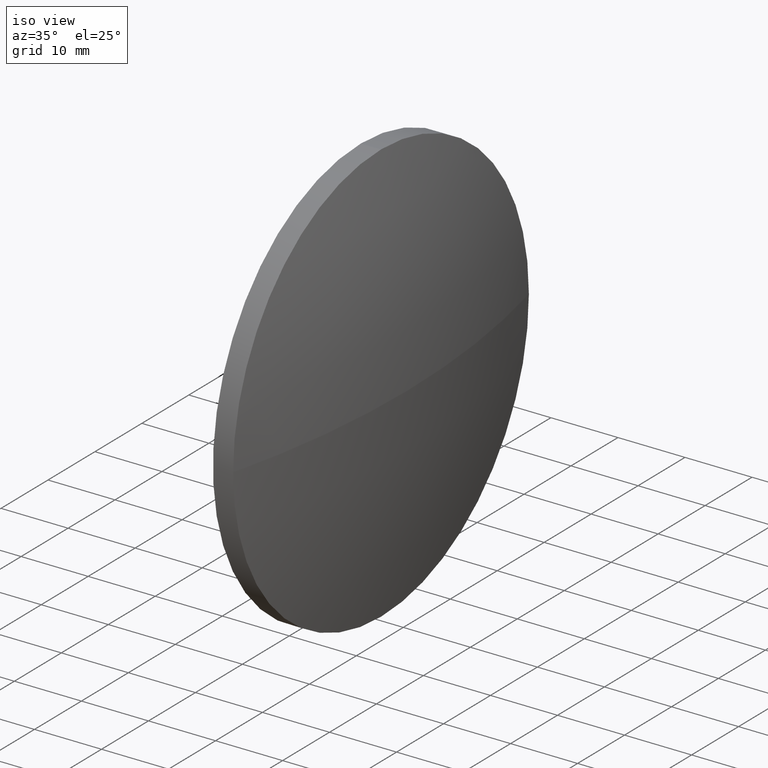
[diagram: clean part render]
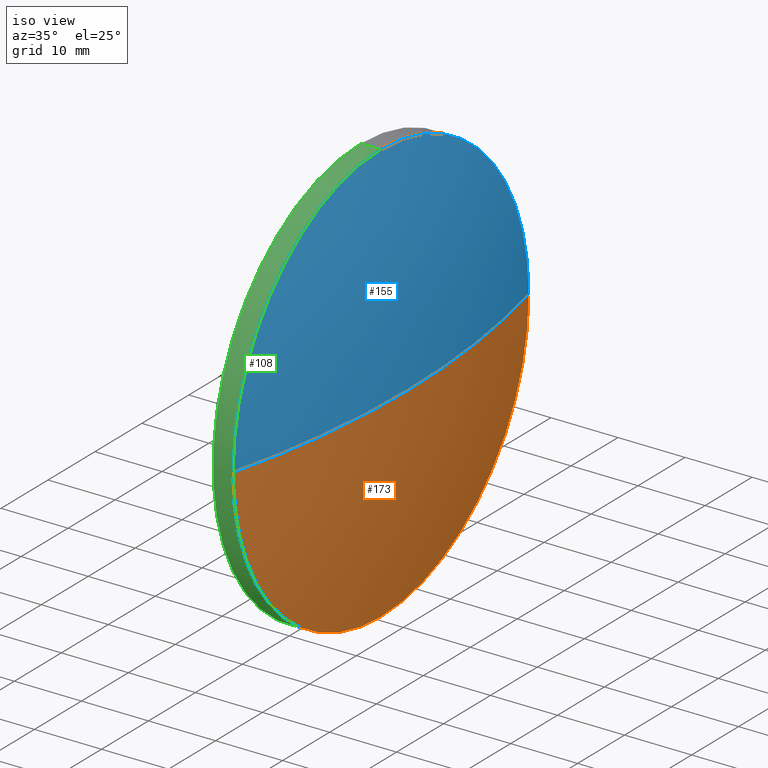
[diagram: same view with three faces highlighted in distinct colors, each labeled with its STEP entity id]
A machine part, iso view with three faces highlighted in distinct colors.
Their STEP definitions:

[orange] entity #173 — the highlighted spherical surface has radius 129.161 mm.
#3 = VERTEX_POINT ( 'NONE', #52 ) ;
#6 = ORIENTED_EDGE ( 'NONE', *, *, #19, .F. ) ;
#14 = CARTESIAN_POINT ( 'NONE',  ( 262.4010085669045800, 48.58872453449594500, 0.0000000000000000000 ) ) ;
#19 = EDGE_CURVE ( 'NONE', #33, #3, #97, .T. ) ;
#22 = CARTESIAN_POINT ( 'NONE',  ( 391.5625470284427400, 48.58872453449595200, 0.0000000000000000000 ) ) ;
#33 = VERTEX_POINT ( 'NONE', #163 ) ;
#36 = ORIENTED_EDGE ( 'NONE', *, *, #67, .F. ) ;
#37 = SPHERICAL_SURFACE ( 'NONE', #94, 129.1615384615381900 ) ;
#38 = CARTESIAN_POINT ( 'NONE',  ( 387.6625470284427600, 17.08872453449603100, -3.857637417314152400E-015 ) ) ;
#42 = DIRECTION ( 'NONE',  ( 0.0000000000000000000, 0.0000000000000000000, 1.000000000000000000 ) ) ;
#48 = EDGE_LOOP ( 'NONE', ( #36, #58, #105, #6 ) ) ;
#52 = CARTESIAN_POINT ( 'NONE',  ( 387.6625470284427600, 48.58872453449601600, -31.50000000000000700 ) ) ;
#54 = DIRECTION ( 'NONE',  ( 0.0000000000000000000, 1.000000000000000000, 1.224646799147353200E-016 ) ) ;
#58 = ORIENTED_EDGE ( 'NONE', *, *, #62, .T. ) ;
#62 = EDGE_CURVE ( 'NONE', #70, #79, #76, .T. ) ;
#64 = AXIS2_PLACEMENT_3D ( 'NONE', #98, #144, #123 ) ;
#67 = EDGE_CURVE ( 'NONE', #70, #33, #161, .T. ) ;
#70 = VERTEX_POINT ( 'NONE', #22 ) ;
#76 = CIRCLE ( 'NONE', #171, 129.1615384615381900 ) ;
#79 = VERTEX_POINT ( 'NONE', #38 ) ;
#80 = AXIS2_PLACEMENT_3D ( 'NONE', #175, #99, #182 ) ;
#94 = AXIS2_PLACEMENT_3D ( 'NONE', #14, #167, #178 ) ;
#97 = CIRCLE ( 'NONE', #64, 31.50000000000000700 ) ;
#98 = CARTESIAN_POINT ( 'NONE',  ( 387.6625470284427600, 48.58872453449600900, 0.0000000000000000000 ) ) ;
#99 = DIRECTION ( 'NONE',  ( -0.0000000000000000000, 0.0000000000000000000, 1.000000000000000000 ) ) ;
#105 = ORIENTED_EDGE ( 'NONE', *, *, #134, .F. ) ;
#111 = DIRECTION ( 'NONE',  ( 0.0000000000000000000, 1.224646799147353200E-016, -1.000000000000000000 ) ) ;
#116 = AXIS2_PLACEMENT_3D ( 'NONE', #118, #164, #42 ) ;
#118 = CARTESIAN_POINT ( 'NONE',  ( 387.6625470284427600, 48.58872453449600900, 0.0000000000000000000 ) ) ;
#123 = DIRECTION ( 'NONE',  ( 0.0000000000000000000, 0.0000000000000000000, 1.000000000000000000 ) ) ;
#134 = EDGE_CURVE ( 'NONE', #3, #79, #185, .T. ) ;
#144 = DIRECTION ( 'NONE',  ( -1.000000000000000000, -0.0000000000000000000, -0.0000000000000000000 ) ) ;
#146 = CARTESIAN_POINT ( 'NONE',  ( 262.4010085669045800, 48.58872453449594500, 0.0000000000000000000 ) ) ;
#160 = FACE_OUTER_BOUND ( 'NONE', #48, .T. ) ;
#161 = CIRCLE ( 'NONE', #80, 129.1615384615381600 ) ;
#163 = CARTESIAN_POINT ( 'NONE',  ( 387.6625470284427600, 80.08872453449592400, 0.0000000000000000000 ) ) ;
#164 = DIRECTION ( 'NONE',  ( -1.000000000000000000, -0.0000000000000000000, -0.0000000000000000000 ) ) ;
#167 = DIRECTION ( 'NONE',  ( -0.0000000000000000000, 0.0000000000000000000, -1.000000000000000000 ) ) ;
#171 = AXIS2_PLACEMENT_3D ( 'NONE', #146, #111, #54 ) ;
#173 = ADVANCED_FACE ( 'NONE', ( #160 ), #37, .T. ) ;
#175 = CARTESIAN_POINT ( 'NONE',  ( 262.4010085669045800, 48.58872453449594500, 0.0000000000000000000 ) ) ;
#178 = DIRECTION ( 'NONE',  ( 0.0000000000000000000, 1.000000000000000000, 0.0000000000000000000 ) ) ;
#182 = DIRECTION ( 'NONE',  ( 1.000000000000000000, 0.0000000000000000000, 0.0000000000000000000 ) ) ;
#185 = CIRCLE ( 'NONE', #116, 31.50000000000000700 ) ;

[blue] entity #155 — the highlighted spherical surface has radius 129.161 mm.
#5 = CARTESIAN_POINT ( 'NONE',  ( 262.4010085669045800, 48.58872453449594500, 0.0000000000000000000 ) ) ;
#9 = ORIENTED_EDGE ( 'NONE', *, *, #67, .T. ) ;
#10 = DIRECTION ( 'NONE',  ( -1.000000000000000000, -0.0000000000000000000, -0.0000000000000000000 ) ) ;
#16 = DIRECTION ( 'NONE',  ( 0.0000000000000000000, 1.000000000000000000, 0.0000000000000000000 ) ) ;
#20 = ORIENTED_EDGE ( 'NONE', *, *, #34, .F. ) ;
#22 = CARTESIAN_POINT ( 'NONE',  ( 391.5625470284427400, 48.58872453449595200, 0.0000000000000000000 ) ) ;
#26 = DIRECTION ( 'NONE',  ( 0.0000000000000000000, 0.0000000000000000000, 1.000000000000000000 ) ) ;
#27 = EDGE_LOOP ( 'NONE', ( #153, #9, #68, #20 ) ) ;
#33 = VERTEX_POINT ( 'NONE', #163 ) ;
#34 = EDGE_CURVE ( 'NONE', #79, #95, #125, .T. ) ;
#38 = CARTESIAN_POINT ( 'NONE',  ( 387.6625470284427600, 17.08872453449603100, -3.857637417314152400E-015 ) ) ;
#40 = CARTESIAN_POINT ( 'NONE',  ( 387.6625470284427600, 48.58872453449600900, 0.0000000000000000000 ) ) ;
#44 = CARTESIAN_POINT ( 'NONE',  ( 387.6625470284427600, 48.58872453449600900, 31.50000000000000700 ) ) ;
#51 = DIRECTION ( 'NONE',  ( 0.0000000000000000000, 0.0000000000000000000, 1.000000000000000000 ) ) ;
#54 = DIRECTION ( 'NONE',  ( 0.0000000000000000000, 1.000000000000000000, 1.224646799147353200E-016 ) ) ;
#62 = EDGE_CURVE ( 'NONE', #70, #79, #76, .T. ) ;
#67 = EDGE_CURVE ( 'NONE', #70, #33, #161, .T. ) ;
#68 = ORIENTED_EDGE ( 'NONE', *, *, #137, .F. ) ;
#70 = VERTEX_POINT ( 'NONE', #22 ) ;
#76 = CIRCLE ( 'NONE', #171, 129.1615384615381900 ) ;
#79 = VERTEX_POINT ( 'NONE', #38 ) ;
#80 = AXIS2_PLACEMENT_3D ( 'NONE', #175, #99, #182 ) ;
#88 = DIRECTION ( 'NONE',  ( -0.0000000000000000000, 0.0000000000000000000, -1.000000000000000000 ) ) ;
#95 = VERTEX_POINT ( 'NONE', #44 ) ;
#99 = DIRECTION ( 'NONE',  ( -0.0000000000000000000, 0.0000000000000000000, 1.000000000000000000 ) ) ;
#111 = DIRECTION ( 'NONE',  ( 0.0000000000000000000, 1.224646799147353200E-016, -1.000000000000000000 ) ) ;
#113 = CARTESIAN_POINT ( 'NONE',  ( 387.6625470284427600, 48.58872453449600900, 0.0000000000000000000 ) ) ;
#119 = FACE_OUTER_BOUND ( 'NONE', #27, .T. ) ;
#120 = AXIS2_PLACEMENT_3D ( 'NONE', #5, #88, #16 ) ;
#121 = AXIS2_PLACEMENT_3D ( 'NONE', #40, #10, #51 ) ;
#122 = CIRCLE ( 'NONE', #179, 31.50000000000000700 ) ;
#125 = CIRCLE ( 'NONE', #121, 31.50000000000000700 ) ;
#129 = DIRECTION ( 'NONE',  ( -1.000000000000000000, -0.0000000000000000000, -0.0000000000000000000 ) ) ;
#137 = EDGE_CURVE ( 'NONE', #95, #33, #122, .T. ) ;
#146 = CARTESIAN_POINT ( 'NONE',  ( 262.4010085669045800, 48.58872453449594500, 0.0000000000000000000 ) ) ;
#152 = SPHERICAL_SURFACE ( 'NONE', #120, 129.1615384615381900 ) ;
#153 = ORIENTED_EDGE ( 'NONE', *, *, #62, .F. ) ;
#155 = ADVANCED_FACE ( 'NONE', ( #119 ), #152, .T. ) ;
#161 = CIRCLE ( 'NONE', #80, 129.1615384615381600 ) ;
#163 = CARTESIAN_POINT ( 'NONE',  ( 387.6625470284427600, 80.08872453449592400, 0.0000000000000000000 ) ) ;
#171 = AXIS2_PLACEMENT_3D ( 'NONE', #146, #111, #54 ) ;
#175 = CARTESIAN_POINT ( 'NONE',  ( 262.4010085669045800, 48.58872453449594500, 0.0000000000000000000 ) ) ;
#179 = AXIS2_PLACEMENT_3D ( 'NONE', #113, #129, #26 ) ;
#182 = DIRECTION ( 'NONE',  ( 1.000000000000000000, 0.0000000000000000000, 0.0000000000000000000 ) ) ;

[green] entity #108 — the highlighted cylindrical surface (partial cylindrical patch) has radius 31.5 mm, axis along (-1, -0, -0).
#2 = CARTESIAN_POINT ( 'NONE',  ( 384.6625470284427600, 48.58872453449601600, -31.50000000000000700 ) ) ;
#3 = VERTEX_POINT ( 'NONE', #52 ) ;
#4 = DIRECTION ( 'NONE',  ( 0.0000000000000000000, 0.0000000000000000000, 1.000000000000000000 ) ) ;
#8 = AXIS2_PLACEMENT_3D ( 'NONE', #103, #106, #4 ) ;
#10 = DIRECTION ( 'NONE',  ( -1.000000000000000000, -0.0000000000000000000, -0.0000000000000000000 ) ) ;
#15 = DIRECTION ( 'NONE',  ( -1.000000000000000000, -0.0000000000000000000, -0.0000000000000000000 ) ) ;
#17 = CIRCLE ( 'NONE', #159, 31.50000000000000700 ) ;
#21 = VECTOR ( 'NONE', #176, 1000.000000000000000 ) ;
#25 = CARTESIAN_POINT ( 'NONE',  ( 384.6625470284427600, 48.58872453449600900, 31.50000000000000700 ) ) ;
#30 = EDGE_LOOP ( 'NONE', ( #55, #43, #109, #39, #66 ) ) ;
#34 = EDGE_CURVE ( 'NONE', #79, #95, #125, .T. ) ;
#38 = CARTESIAN_POINT ( 'NONE',  ( 387.6625470284427600, 17.08872453449603100, -3.857637417314152400E-015 ) ) ;
#39 = ORIENTED_EDGE ( 'NONE', *, *, #72, .T. ) ;
#40 = CARTESIAN_POINT ( 'NONE',  ( 387.6625470284427600, 48.58872453449600900, 0.0000000000000000000 ) ) ;
#42 = DIRECTION ( 'NONE',  ( 0.0000000000000000000, 0.0000000000000000000, 1.000000000000000000 ) ) ;
#43 = ORIENTED_EDGE ( 'NONE', *, *, #134, .T. ) ;
#44 = CARTESIAN_POINT ( 'NONE',  ( 387.6625470284427600, 48.58872453449600900, 31.50000000000000700 ) ) ;
#46 = LINE ( 'NONE', #57, #81 ) ;
#51 = DIRECTION ( 'NONE',  ( 0.0000000000000000000, 0.0000000000000000000, 1.000000000000000000 ) ) ;
#52 = CARTESIAN_POINT ( 'NONE',  ( 387.6625470284427600, 48.58872453449601600, -31.50000000000000700 ) ) ;
#55 = ORIENTED_EDGE ( 'NONE', *, *, #148, .F. ) ;
#57 = CARTESIAN_POINT ( 'NONE',  ( 365.6235919666203200, 48.58872453449601600, -31.50000000000000700 ) ) ;
#63 = LINE ( 'NONE', #71, #21 ) ;
#66 = ORIENTED_EDGE ( 'NONE', *, *, #158, .F. ) ;
#71 = CARTESIAN_POINT ( 'NONE',  ( 365.6235919666203200, 48.58872453449600900, 31.50000000000000700 ) ) ;
#72 = EDGE_CURVE ( 'NONE', #95, #186, #63, .T. ) ;
#75 = CARTESIAN_POINT ( 'NONE',  ( 384.6625470284427600, 48.58872453449600900, 0.0000000000000000000 ) ) ;
#77 = DIRECTION ( 'NONE',  ( 0.0000000000000000000, 0.0000000000000000000, 1.000000000000000000 ) ) ;
#79 = VERTEX_POINT ( 'NONE', #38 ) ;
#81 = VECTOR ( 'NONE', #177, 1000.000000000000000 ) ;
#86 = VERTEX_POINT ( 'NONE', #2 ) ;
#90 = CYLINDRICAL_SURFACE ( 'NONE', #8, 31.50000000000000700 ) ;
#95 = VERTEX_POINT ( 'NONE', #44 ) ;
#103 = CARTESIAN_POINT ( 'NONE',  ( 365.6235919666203200, 48.58872453449600900, 0.0000000000000000000 ) ) ;
#106 = DIRECTION ( 'NONE',  ( -1.000000000000000000, -0.0000000000000000000, -0.0000000000000000000 ) ) ;
#108 = ADVANCED_FACE ( 'NONE', ( #138 ), #90, .T. ) ;
#109 = ORIENTED_EDGE ( 'NONE', *, *, #34, .T. ) ;
#116 = AXIS2_PLACEMENT_3D ( 'NONE', #118, #164, #42 ) ;
#118 = CARTESIAN_POINT ( 'NONE',  ( 387.6625470284427600, 48.58872453449600900, 0.0000000000000000000 ) ) ;
#121 = AXIS2_PLACEMENT_3D ( 'NONE', #40, #10, #51 ) ;
#125 = CIRCLE ( 'NONE', #121, 31.50000000000000700 ) ;
#134 = EDGE_CURVE ( 'NONE', #3, #79, #185, .T. ) ;
#138 = FACE_OUTER_BOUND ( 'NONE', #30, .T. ) ;
#148 = EDGE_CURVE ( 'NONE', #3, #86, #46, .T. ) ;
#158 = EDGE_CURVE ( 'NONE', #86, #186, #17, .T. ) ;
#159 = AXIS2_PLACEMENT_3D ( 'NONE', #75, #15, #77 ) ;
#164 = DIRECTION ( 'NONE',  ( -1.000000000000000000, -0.0000000000000000000, -0.0000000000000000000 ) ) ;
#176 = DIRECTION ( 'NONE',  ( -1.000000000000000000, -0.0000000000000000000, -0.0000000000000000000 ) ) ;
#177 = DIRECTION ( 'NONE',  ( -1.000000000000000000, -0.0000000000000000000, -0.0000000000000000000 ) ) ;
#185 = CIRCLE ( 'NONE', #116, 31.50000000000000700 ) ;
#186 = VERTEX_POINT ( 'NONE', #25 ) ;